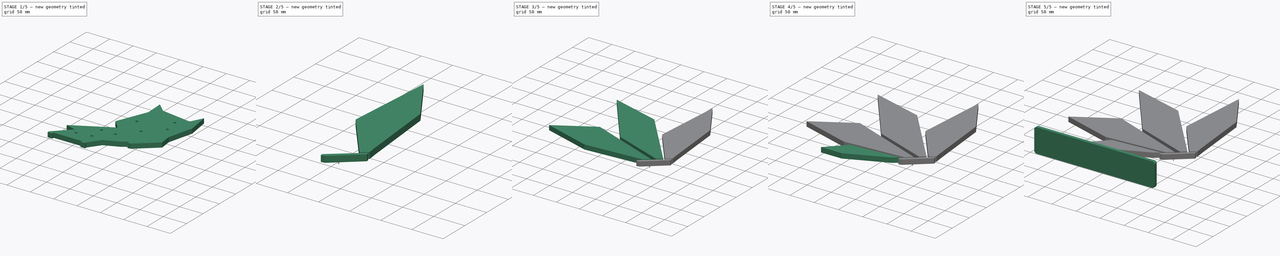
[diagram: build sequence overview — one tinted view per stage of 5, left to right]
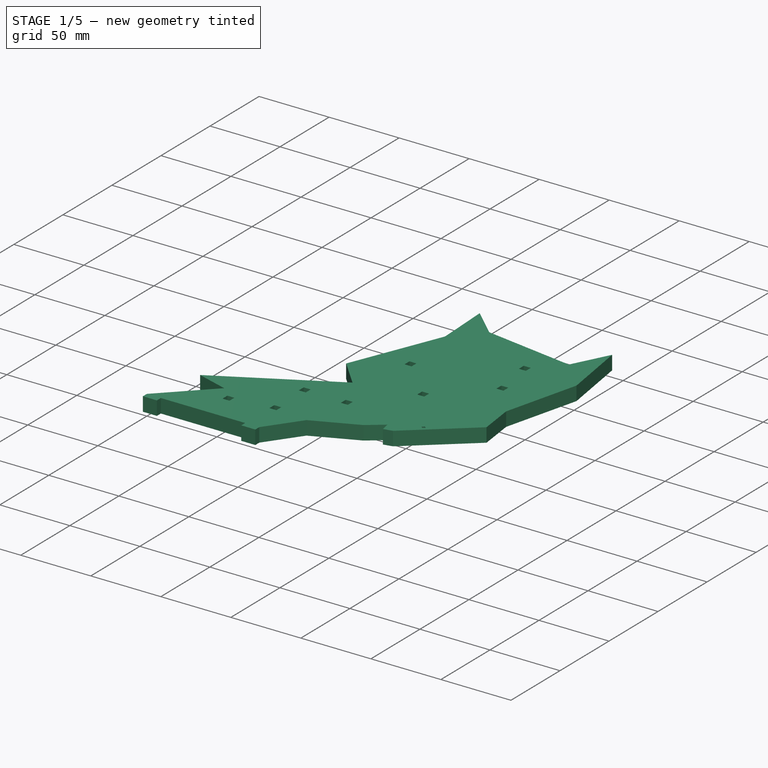
[diagram: stage 1 of 5 — iso view after this stage's code; geometry added in this stage tinted green]
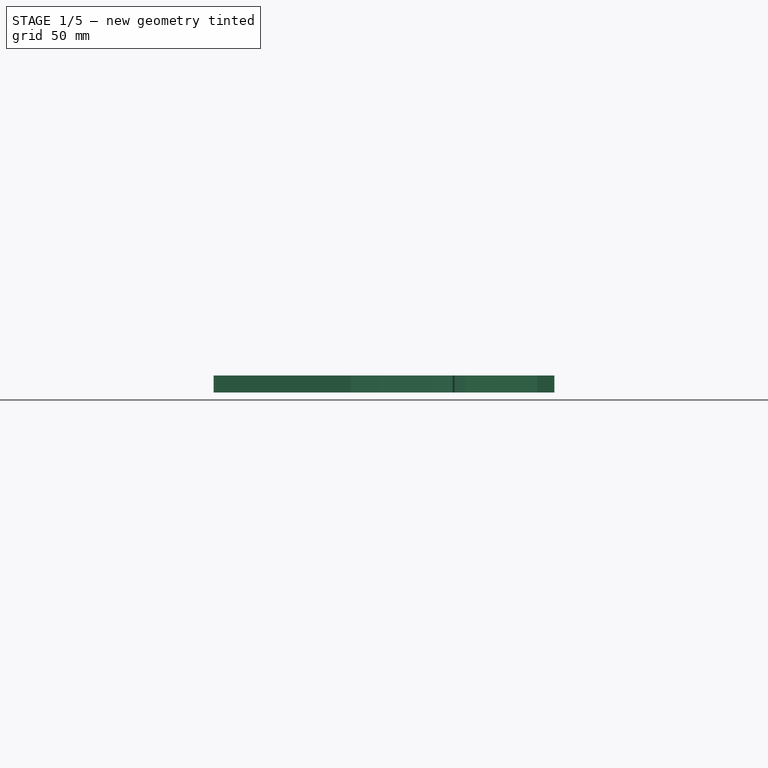
[diagram: stage 1 of 5 — front view after this stage's code; geometry added in this stage tinted green]
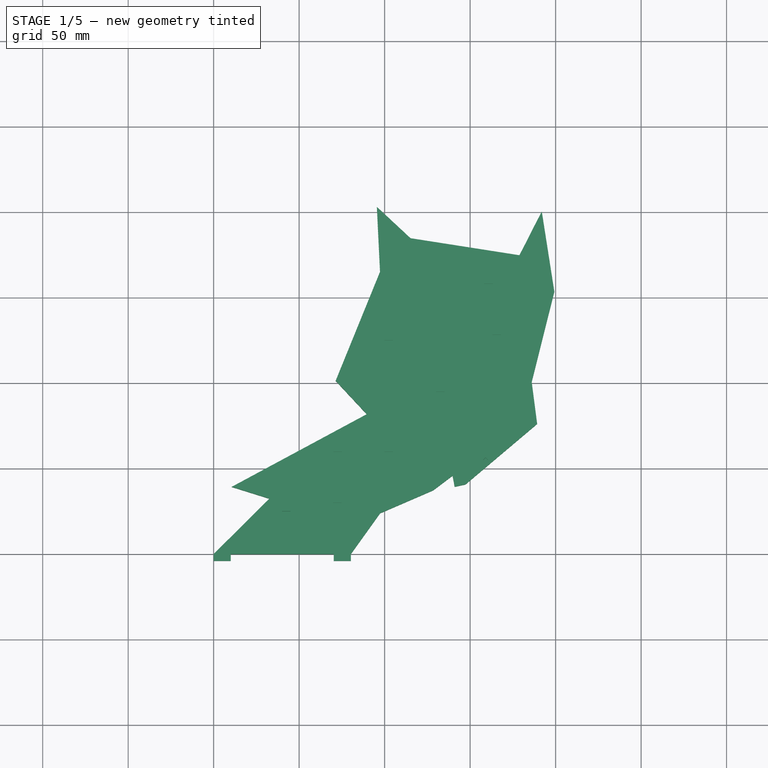
[diagram: stage 1 of 5 — top view after this stage's code; geometry added in this stage tinted green]
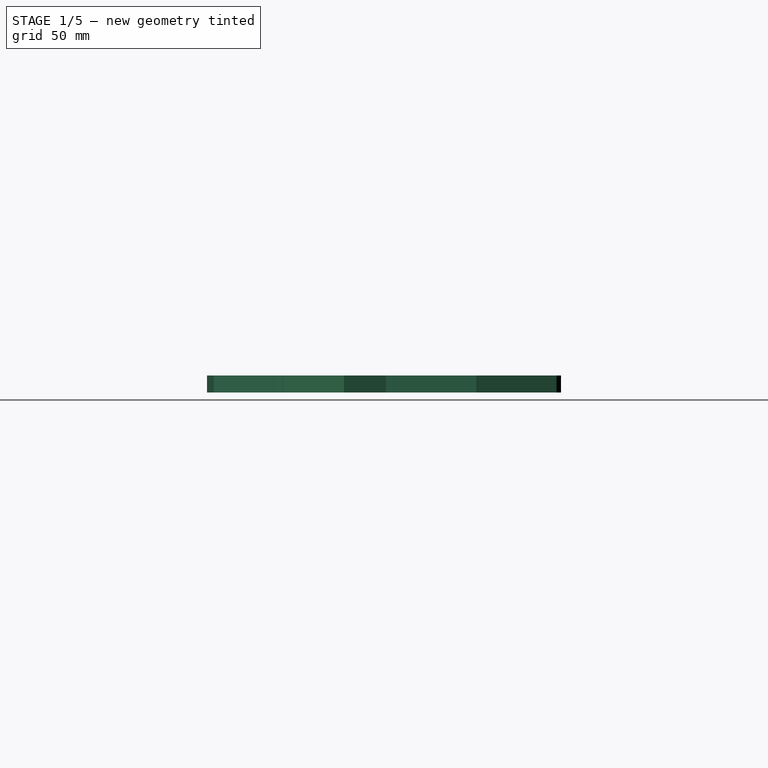
[diagram: stage 1 of 5 — right view after this stage's code; geometry added in this stage tinted green]
FCSTD DOCUMENT  (FreeCAD 0.21R33771 (Git))
Label: Crimson1
License: All rights reserved
LicenseURL: https://en.wikipedia.org/wiki/All_rights_reserved
objects: Sketcher::SketchObject×16, PartDesign::Pad×13, PartDesign::Body×7, PartDesign::ShapeBinder×6, PartDesign::Pocket×2, Image::ImagePlane×1, PartDesign::Fillet×1
note: 61 computed .brp shape members not serialized (recipe doc carries the construction recipe); baked Part::Feature solids carry a one-line shape summary decoded from their .brp

FEATURE [Image::ImagePlane] Crimson_1_emblem
  Placement = pos=(76.8301,148.272,0) rot=(0,0,-1;0.069813rad)
  XSize = 307.477
  YSize = 307.477
FEATURE [Sketcher::SketchObject] Sketch
  FullyConstrained = true
  MapMode = 5
  Support = -> [XY_Plane]
  sketch-geometry (19):
    g0: LineSegment StartX=0 StartY=0 StartZ=0 EndX=80.25 EndY=0 EndZ=0
    g1: LineSegment StartX=80.25 StartY=0 StartZ=0 EndX=97.3178 EndY=23.8401 EndZ=0
    g2: LineSegment StartX=97.3178 StartY=23.8401 StartZ=0 EndX=128.45 EndY=37.3059 EndZ=0
    g3: LineSegment StartX=128.45 StartY=37.3059 StartZ=0 EndX=139.749 EndY=45.8414 EndZ=0
    g4: LineSegment StartX=139.749 StartY=45.8414 StartZ=0 EndX=140.95 EndY=39.3618 EndZ=0
    g5: LineSegment StartX=140.95 StartY=39.3618 StartZ=0 EndX=147.274 EndY=40.728 EndZ=0
    g6: LineSegment StartX=147.274 StartY=40.728 StartZ=0 EndX=189.211 EndY=76.1425 EndZ=0
    g7: LineSegment StartX=186.02 StartY=100.676 StartZ=0 EndX=199.258 EndY=153.533 EndZ=0
    g8: LineSegment StartX=199.258 StartY=153.533 StartZ=0 EndX=191.912 EndY=200.442 EndZ=0
    g9: LineSegment StartX=191.912 StartY=200.442 StartZ=0 EndX=178.851 EndY=174.808 EndZ=0
    g10: LineSegment StartX=178.851 StartY=174.808 StartZ=0 EndX=115.155 EndY=184.771 EndZ=0
    g11: LineSegment StartX=115.155 StartY=184.771 StartZ=0 EndX=95.4513 EndY=203.113 EndZ=0
    g12: LineSegment StartX=95.4513 StartY=203.113 StartZ=0 EndX=97.2957 EndY=165.118 EndZ=0
    g13: LineSegment StartX=97.2957 StartY=165.118 StartZ=0 EndX=71.3445 EndY=101.367 EndZ=0
    g14: LineSegment StartX=71.3445 StartY=101.367 StartZ=0 EndX=89.5553 EndY=81.8249 EndZ=0
    g15: LineSegment StartX=89.5553 StartY=81.8249 StartZ=0 EndX=10.5176 EndY=39.303 EndZ=0
    g16: LineSegment StartX=10.5176 StartY=39.303 StartZ=0 EndX=32.5284 EndY=32.4264 EndZ=0
    g17: LineSegment StartX=32.5284 StartY=32.4264 StartZ=0 EndX=0 EndY=0 EndZ=0
    g18: LineSegment StartX=186.02 StartY=100.676 StartZ=0 EndX=189.211 EndY=76.1425 EndZ=0
  constraints (56):
    c: Coincident(g-1,g0)
    c: PointOnObject(g0,g-1)
    c: Coincident(g0,g1)
    c: Coincident(g2,g3)
    c: Coincident(g2,g1)
    c: Coincident(g3,g4)
    c: Coincident(g4,g5)
    c: Coincident(g5,g6)
    c: Coincident(g7,g8)
    c: Coincident(g8,g9)
    c: Coincident(g9,g10)
    c: Coincident(g10,g11)
    c: Coincident(g11,g12)
    c: Coincident(g12,g13)
    c: Coincident(g13,g14)
    c: Coincident(g15,g16)
    c: Coincident(g16,g17)
    c: Coincident(g17,g0)
    c: DistanceX(g0,g0) = 80.25
    c: Distance(g1) = 29.32
    c: Distance(g2) = 33.92
    c: Distance(g3) = 14.16
    c: Distance(g4) = 6.59
    c: Distance(g5) = 6.47
    c: Distance(g6) = 54.89
    c: Coincident(g18,g7)
    c: Coincident(g18,g6)
    c: Distance(g18) = 24.74
    c: Distance(g7) = 54.49
    c: Distance(g8) = 47.48
    c: Distance(g9) = 28.77
    c: Distance(g10) = 64.47
    c: Distance(g11) = 26.92
    c: Distance(g12) = 38.04
    c: Distance(g13) = 68.83
    c: Angle(g0,g17) = 0.783827
    c: Angle(g16,g17) = 1.08664
    c: Angle(g16,g15) = 0.796394
    c: Distance(g17) = 45.93
    c: Distance(g16) = 23.06
    c: Coincident(g15,g14)
    c: Distance(g15) = 89.75
    c: Angle(g14,g15) = 1.31423
    c: Angle(g14,g13) = 2.00486
    c: Angle(g1,g0) = 2.19213
    c: Angle(g2) = 0.408233
    c: Angle(g3,g2) = 2.90283
    c: Angle(g3,g4) = 1.10706
    c: Angle(g5,g4) = 1.5413
    c: Angle(g6,g5) = 2.65307
    c: Angle(g18,g6) = 2.14274
    c: Angle(g18,g7) = 2.76687
    c: Angle(g8,g7) = 2.74087
    c: Angle(g9,g8) = 0.626573
    c: Angle(g9,g10) = 1.88688
    c: Angle(g10,g11) = 2.54713
FEATURE [PartDesign::Pad] Pad
  Direction = (0,0,1)
  Length = 10
  Length2 = 10
  Profile = -> Sketch
  ReferenceAxis = -> Sketch [N_Axis]
  Type = 0
FEATURE [Sketcher::SketchObject] Sketch001
  ExternalGeometry = -> [Pad]
  FullyConstrained = true
  MapMode = 5
  Placement = pos=(0,0,0) rot=(1,0,0;1.5708rad)
  Support = -> [Pad]
  sketch-geometry (8):
    g0: LineSegment StartX=0 StartY=10 StartZ=0 EndX=10 EndY=10 EndZ=0
    g1: LineSegment StartX=10 StartY=10 StartZ=0 EndX=10 EndY=0 EndZ=0
    g2: LineSegment StartX=10 StartY=0 StartZ=0 EndX=0 EndY=0 EndZ=0
    g3: LineSegment StartX=0 StartY=0 StartZ=0 EndX=0 EndY=10 EndZ=0
    g4: LineSegment StartX=80.25 StartY=10 StartZ=0 EndX=70.25 EndY=10 EndZ=0
    g5: LineSegment StartX=70.25 StartY=10 StartZ=0 EndX=70.25 EndY=0 EndZ=0
    g6: LineSegment StartX=70.25 StartY=0 StartZ=0 EndX=80.25 EndY=0 EndZ=0
    g7: LineSegment StartX=80.25 StartY=0 StartZ=0 EndX=80.25 EndY=10 EndZ=0
  constraints (22):
    c: Coincident(g0,g1)
    c: Coincident(g1,g2)
    c: Coincident(g2,g3)
    c: Coincident(g3,g0)
    c: Horizontal(g0)
    c: Horizontal(g2)
    c: Vertical(g1)
    c: Vertical(g3)
    c: Coincident(g0,g-4)
    c: PointOnObject(g1,g-5)
    c: Coincident(g4,g5)
    c: Coincident(g5,g6)
    c: Coincident(g6,g7)
    c: Coincident(g7,g4)
    c: Horizontal(g4)
    c: Horizontal(g6)
    c: Vertical(g5)
    c: Vertical(g7)
    c: Coincident(g4,g-3)
    c: PointOnObject(g5,g-5)
    c: Equal(g0,g3)
    c: Equal(g4,g7)
FEATURE [PartDesign::Pad] Pad001
  BaseFeature = -> Pad
  Direction = (0,-1,2e-16)
  Length = 4
  Length2 = 10
  Profile = -> Sketch001
  ReferenceAxis = -> Sketch001 [N_Axis]
  Type = 0
FEATURE [PartDesign::Body] Body001  label="Foot"
  Group = -> [ShapeBinder,Sketch002,Pad002,Sketch003,Pocket,Fillet]
  Origin = -> Origin001
  Tip = -> Fillet
FEATURE [Sketcher::SketchObject] Sketch004
  ExternalGeometry = -> [Pad001]
  FullyConstrained = true
  MapMode = 5
  Placement = pos=(0,0,10) rot=(0,0,1;0rad)
  Support = -> [Pad001]
  sketch-geometry (47):
    g0: LineSegment StartX=40 StartY=25 StartZ=0 EndX=45 EndY=25 EndZ=0
    g1: LineSegment StartX=45 StartY=25 StartZ=0 EndX=45 EndY=20 EndZ=0
    g2: LineSegment StartX=45 StartY=20 StartZ=0 EndX=40 EndY=20 EndZ=0
    g3: LineSegment StartX=40 StartY=20 StartZ=0 EndX=40 EndY=25 EndZ=0
    g4: LineSegment StartX=70 StartY=30 StartZ=0 EndX=75 EndY=30 EndZ=0
    g5: LineSegment StartX=75 StartY=30 StartZ=0 EndX=75 EndY=25 EndZ=0
    g6: LineSegment StartX=75 StartY=25 StartZ=0 EndX=70 EndY=25 EndZ=0
    g7: LineSegment StartX=70 StartY=25 StartZ=0 EndX=70 EndY=30 EndZ=0
    g8: LineSegment StartX=70 StartY=60 StartZ=0 EndX=75 EndY=60 EndZ=0
    g9: LineSegment StartX=75 StartY=60 StartZ=0 EndX=75 EndY=55 EndZ=0
    g10: LineSegment StartX=75 StartY=55 StartZ=0 EndX=70 EndY=55 EndZ=0
    g11: LineSegment StartX=70 StartY=55 StartZ=0 EndX=70 EndY=60 EndZ=0
    g12: LineSegment StartX=105 StartY=60 StartZ=0 EndX=100 EndY=60 EndZ=0
    g13: LineSegment StartX=100 StartY=60 StartZ=0 EndX=100 EndY=55 EndZ=0
    g14: LineSegment StartX=100 StartY=55 StartZ=0 EndX=105 EndY=55 EndZ=0
    g15: LineSegment StartX=105 StartY=55 StartZ=0 EndX=105 EndY=60 EndZ=0
    g16: LineSegment StartX=100 StartY=125 StartZ=0 EndX=105 EndY=125 EndZ=0
    g17: LineSegment StartX=105 StartY=125 StartZ=0 EndX=105 EndY=120 EndZ=0
    g18: LineSegment StartX=105 StartY=120 StartZ=0 EndX=100 EndY=120 EndZ=0
    g19: LineSegment StartX=100 StartY=120 StartZ=0 EndX=100 EndY=125 EndZ=0
    g20: LineSegment StartX=130 StartY=95 StartZ=0 EndX=135 EndY=95 EndZ=0
    g21: LineSegment StartX=135 StartY=95 StartZ=0 EndX=135 EndY=90 EndZ=0
    g22: LineSegment StartX=135 StartY=90 StartZ=0 EndX=130 EndY=90 EndZ=0
    g23: LineSegment StartX=130 StartY=90 StartZ=0 EndX=130 EndY=95 EndZ=0
    g24: LineSegment StartX=158.284 StartY=158.284 StartZ=0 EndX=163.284 EndY=158.284 EndZ=0
    g25: LineSegment StartX=163.284 StartY=158.284 StartZ=0 EndX=163.284 EndY=153.284 EndZ=0
    g26: LineSegment StartX=163.284 StartY=153.284 StartZ=0 EndX=158.284 EndY=153.284 EndZ=0
    g27: LineSegment StartX=158.284 StartY=153.284 StartZ=0 EndX=158.284 EndY=158.284 EndZ=0
    g28: LineSegment StartX=163.284 StartY=128.284 StartZ=0 EndX=168.284 EndY=128.284 EndZ=0
    g29: LineSegment StartX=168.284 StartY=128.284 StartZ=0 EndX=168.284 EndY=123.284 EndZ=0
    g30: LineSegment StartX=168.284 StartY=123.284 StartZ=0 EndX=163.284 EndY=123.284 EndZ=0
    g31: LineSegment StartX=163.284 StartY=123.284 StartZ=0 EndX=163.284 EndY=128.284 EndZ=0
    g32: LineSegment StartX=45 StartY=25 StartZ=0 EndX=70 EndY=25 EndZ=0
    g33: LineSegment StartX=40 StartY=20 StartZ=0 EndX=40 EndY=0 EndZ=0
    g34: LineSegment StartX=75 StartY=55 StartZ=0 EndX=105 EndY=55 EndZ=0
    g35: LineSegment StartX=70 StartY=55 StartZ=0 EndX=70 EndY=30 EndZ=0
    g36: LineSegment StartX=105 StartY=60 StartZ=0 EndX=105 EndY=120 EndZ=0
    g37: GeomPoint X=105 Y=90 Z=0
    g38: LineSegment StartX=105 StartY=90 StartZ=0 EndX=130 EndY=90 EndZ=0
    g39: LineSegment StartX=163.284 StartY=123.284 StartZ=0 EndX=135 EndY=95 EndZ=0
    g40: LineSegment StartX=163.284 StartY=153.284 StartZ=0 EndX=163.284 EndY=128.284 EndZ=0
    g41: GeomPoint X=159 Y=55 Z=0
    g42: LineSegment StartX=157.586 StartY=55 StartZ=0 EndX=159 EndY=56.4142 EndZ=0
    g43: LineSegment StartX=159 StartY=56.4142 StartZ=0 EndX=160.414 EndY=55 EndZ=0
    g44: LineSegment StartX=160.414 StartY=55 StartZ=0 EndX=159 EndY=53.5858 EndZ=0
    g45: LineSegment StartX=159 StartY=53.5858 StartZ=0 EndX=157.586 EndY=55 EndZ=0
    g46: LineSegment StartX=105 StartY=55 StartZ=0 EndX=159 EndY=55 EndZ=0
  constraints (129):
    c: Coincident(g0,g1)
    c: Coincident(g1,g2)
    c: Coincident(g2,g3)
    c: Coincident(g3,g0)
    c: Horizontal(g0)
    c: Horizontal(g2)
    c: Vertical(g1)
    c: Vertical(g3)
    c: Coincident(g4,g5)
    c: Coincident(g5,g6)
    c: Coincident(g6,g7)
    c: Coincident(g7,g4)
    c: Horizontal(g4)
    c: Horizontal(g6)
    c: Vertical(g5)
    c: Vertical(g7)
    c: Coincident(g8,g9)
    c: Coincident(g9,g10)
    c: Coincident(g10,g11)
    c: Coincident(g11,g8)
    c: Horizontal(g8)
    c: Horizontal(g10)
    c: Vertical(g9)
    c: Vertical(g11)
    c: Coincident(g12,g13)
    c: Coincident(g13,g14)
    c: Coincident(g14,g15)
    c: Coincident(g15,g12)
    c: Horizontal(g12)
    c: Horizontal(g14)
    c: Vertical(g13)
    c: Vertical(g15)
    c: Coincident(g16,g17)
    c: Coincident(g17,g18)
    c: Coincident(g18,g19)
    c: Coincident(g19,g16)
    c: Horizontal(g16)
    c: Horizontal(g18)
    c: Vertical(g17)
    c: Vertical(g19)
    c: Coincident(g20,g21)
    c: Coincident(g21,g22)
    c: Coincident(g22,g23)
    c: Coincident(g23,g20)
    c: Horizontal(g20)
    c: Horizontal(g22)
    c: Vertical(g21)
    c: Vertical(g23)
    c: Coincident(g24,g25)
    c: Coincident(g25,g26)
    c: Coincident(g26,g27)
    c: Coincident(g27,g24)
    c: Horizontal(g24)
    c: Horizontal(g26)
    c: Vertical(g25)
    c: Vertical(g27)
    c: Coincident(g28,g29)
    c: Coincident(g29,g30)
    c: Coincident(g30,g31)
    c: Coincident(g31,g28)
    c: Horizontal(g28)
    c: Horizontal(g30)
    c: Vertical(g29)
    c: Vertical(g31)
    c: Equal(g2,g1)
    c: Equal(g6,g5)
    c: Equal(g10,g9)
    c: Equal(g14,g13)
    c: Equal(g18,g17)
    c: Equal(g22,g21)
    c: Equal(g30,g29)
    c: Equal(g26,g25)
    c: Equal(g3,g7)
    c: Equal(g11,g7)
    c: Equal(g11,g15)
    c: Equal(g15,g23)
    c: Equal(g23,g19)
    c: Equal(g19,g31)
    c: Equal(g31,g27)
    c: DistanceX(g2,g2) = 5
    c: Coincident(g32,g0)
    c: Coincident(g32,g6)
    c: Horizontal(g32)
    c: DistanceX(g32,g32) = 25
    c: Coincident(g33,g2)
    c: PointOnObject(g33,g-3)
    c: Vertical(g33)
    c: DistanceX(g-1,g33) = 40
    c: DistanceY(g33,g2) = 20
    c: Coincident(g34,g9)
    c: Coincident(g34,g14)
    c: Horizontal(g34)
    c: Coincident(g35,g10)
    c: Coincident(g35,g4)
    c: Vertical(g35)
    c: DistanceY(g35,g35) = 25
    c: DistanceX(g34,g34) = 30
    c: Coincident(g36,g12)
    c: Coincident(g36,g17)
    c: Vertical(g36)
    c: Symmetric(g12,g17,g37)
    c: Coincident(g38,g37)
    c: Coincident(g38,g22)
    c: Horizontal(g38)
    c: DistanceY(g36,g36) = 60
    c: DistanceX(g38,g38) = 25
    c: Coincident(g39,g30)
    c: Coincident(g39,g20)
    c: Angle(g39,g20) = 2.35619
    c: Distance(g39) = 40
    c: Coincident(g40,g25)
    c: Coincident(g40,g28)
    c: Vertical(g40)
    c: DistanceY(g40,g40) = 25
    c: Coincident(g42,g43)
    c: Coincident(g43,g44)
    c: Coincident(g44,g45)
    c: Coincident(g45,g42)
    c: Vertical(g44,g42)
    c: Horizontal(g42,g43)
    c: Parallel(g45,g43)
    c: Parallel(g44,g42)
    c: Angle(g44,g45) = 1.5708
    c: Symmetric(g42,g44,g41)
    c: Coincident(g46,g14)
    c: Coincident(g46,g41)
    c: Horizontal(g46)
    c: Distance(g45) = 2
    c: DistanceX(g46,g46) = 54
FEATURE [PartDesign::Pocket] Pocket001
  BaseFeature = -> Pad001
  Direction = (0,0,-1)
  Length = 5
  Length2 = 5
  Profile = -> Sketch004
  ReferenceAxis = -> Sketch004 [N_Axis]
  Type = 0
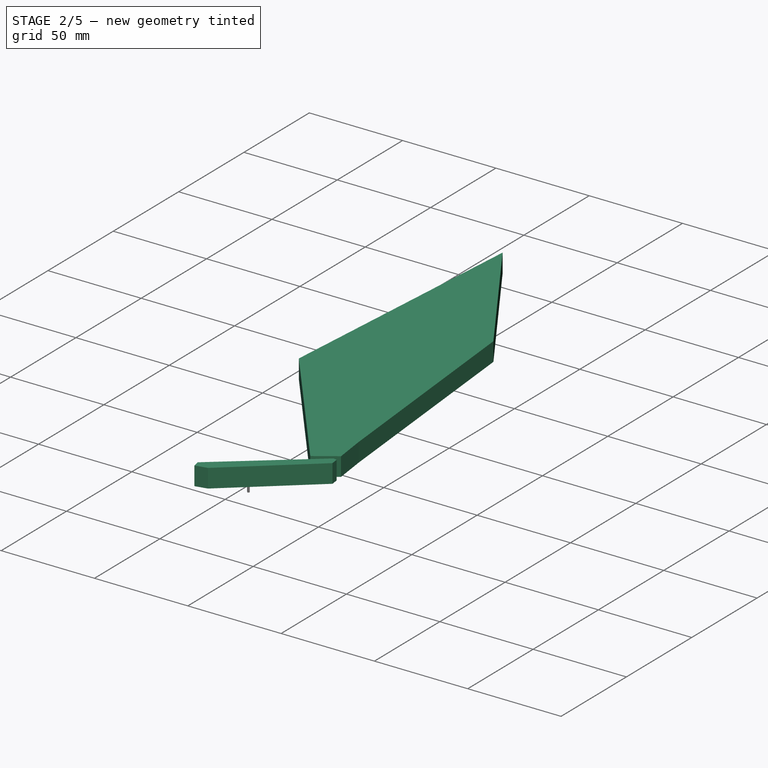
[diagram: stage 2 of 5 — iso view after this stage's code; geometry added in this stage tinted green]
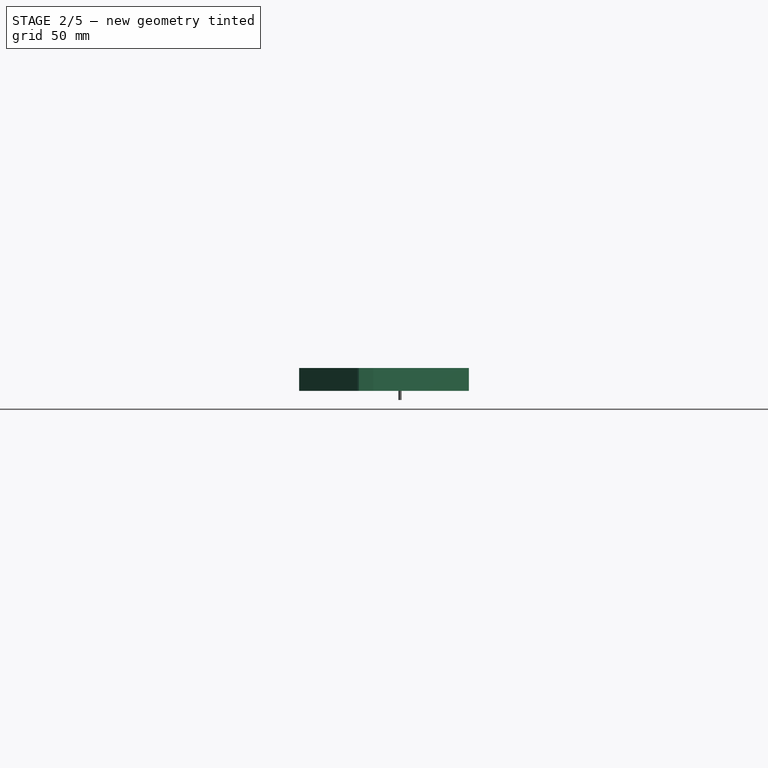
[diagram: stage 2 of 5 — front view after this stage's code; geometry added in this stage tinted green]
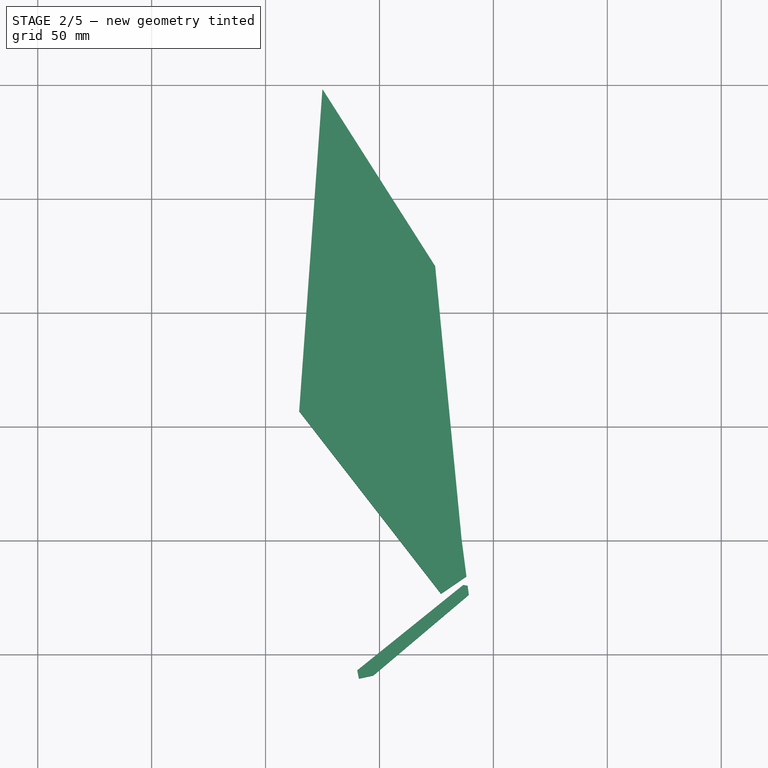
[diagram: stage 2 of 5 — top view after this stage's code; geometry added in this stage tinted green]
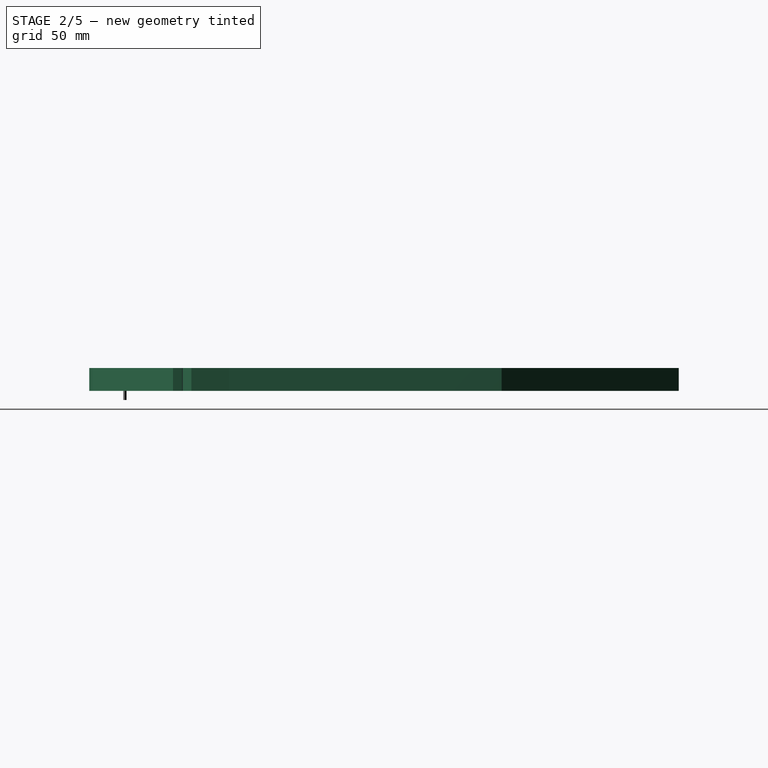
[diagram: stage 2 of 5 — right view after this stage's code; geometry added in this stage tinted green]
FEATURE [PartDesign::Body] Body004  label="WingThree"
  Group = -> [ShapeBinder003,Sketch009,Sketch010,Pad007,Sketch011,Pad008]
  Origin = -> Origin004
  Tip = -> Pad008
FEATURE [PartDesign::ShapeBinder] ShapeBinder004
  Support = -> [Pocket001]
  TraceSupport = false
FEATURE [Sketcher::SketchObject] Sketch012
  ExternalGeometry = -> [ShapeBinder004]
  FullyConstrained = true
  MapMode = 5
  Placement = pos=(0,0,10) rot=(0,0,1;0rad)
  Support = -> [ShapeBinder004]
  sketch-geometry (6):
    g0: LineSegment StartX=186.02 StartY=100.676 StartZ=0 EndX=188.164 EndY=84.1947 EndZ=0
    g1: LineSegment StartX=188.164 StartY=84.1947 StartZ=0 EndX=177.002 EndY=76.5834 EndZ=0
    g2: LineSegment StartX=177.002 StartY=76.5834 StartZ=0 EndX=114.751 EndY=156.736 EndZ=0
    g3: LineSegment StartX=114.751 StartY=156.736 StartZ=0 EndX=124.949 EndY=298.108 EndZ=0
    g4: LineSegment StartX=124.949 StartY=298.108 StartZ=0 EndX=174.445 EndY=220.367 EndZ=0
    g5: LineSegment StartX=174.445 StartY=220.367 StartZ=0 EndX=186.02 EndY=100.676 EndZ=0
  constraints (17):
    c: Coincident(g-3,g0)
    c: PointOnObject(g0,g-3)
    c: Coincident(g0,g1)
    c: Coincident(g1,g2)
    c: Coincident(g2,g3)
    c: Coincident(g3,g4)
    c: Coincident(g4,g5)
    c: Coincident(g5,g0)
    c: PointOnObject(g-4,g5)
    c: Distance(g1) = 13.51
    c: Distance(g5) = 120.25
    c: Distance(g0) = 16.62
    c: Distance(g4) = 92.16
    c: Distance(g3) = 141.74
    c: Angle(g4,g5) = 2.67105
    c: Angle(g3,g4) = 0.638965
    c: Angle(g0,g1) = 2.03994
FEATURE [PartDesign::Pad] Pad009
  Direction = (0,0,1)
  Length = 10
  Length2 = 10
  Profile = -> Sketch012
  ReferenceAxis = -> Sketch012 [N_Axis]
  Type = 0
FEATURE [PartDesign::Body] Body005  label="WingFour"
  Group = -> [ShapeBinder004,Sketch012,Pad009,Sketch013,Pad010]
  Origin = -> Origin005
  Tip = -> Pad010
FEATURE [PartDesign::ShapeBinder] ShapeBinder005
  Support = -> [Pocket001]
  TraceSupport = false
FEATURE [Sketcher::SketchObject] Sketch014
  ExternalGeometry = -> [ShapeBinder005]
  FullyConstrained = true
  MapMode = 5
  Placement = pos=(0,0,10) rot=(0,0,1;0rad)
  Support = -> [ShapeBinder005]
  sketch-geometry (6):
    g0: LineSegment StartX=189.211 StartY=76.1425 StartZ=0 EndX=188.699 EndY=80.0793 EndZ=0
    g1: LineSegment StartX=188.699 StartY=80.0793 StartZ=0 EndX=186.741 EndY=80.3901 EndZ=0
    g2: LineSegment StartX=186.741 StartY=80.3901 StartZ=0 EndX=140.279 EndY=42.9802 EndZ=0
    g3: LineSegment StartX=140.279 StartY=42.9802 StartZ=0 EndX=140.95 EndY=39.3618 EndZ=0
    g4: LineSegment StartX=140.95 StartY=39.3618 StartZ=0 EndX=147.274 EndY=40.728 EndZ=0
    g5: LineSegment StartX=147.274 StartY=40.728 StartZ=0 EndX=189.211 EndY=76.1425 EndZ=0
  constraints (15):
    c: Coincident(g-6,g0)
    c: PointOnObject(g0,g-6)
    c: Coincident(g0,g1)
    c: Coincident(g1,g2)
    c: PointOnObject(g2,g-3)
    c: Coincident(g2,g3)
    c: Coincident(g3,g-4)
    c: Coincident(g3,g4)
    c: Coincident(g4,g-5)
    c: Coincident(g4,g5)
    c: Coincident(g5,g0)
    c: Distance(g0) = 3.97
    c: Distance(g3) = 3.68
    c: Angle(g3,g2) = 2.06542
    c: Angle(g1,g0) = 1.85755
FEATURE [PartDesign::Pad] Pad011
  Direction = (0,0,1)
  Length = 10
  Length2 = 10
  Profile = -> Sketch014
  ReferenceAxis = -> Sketch014 [N_Axis]
  Type = 0
FEATURE [Sketcher::SketchObject] Sketch015
  ExternalGeometry = -> [ShapeBinder005]
  FullyConstrained = true
  MapMode = 5
  Placement = pos=(0,0,10) rot=(1,0,0;3.14159rad)
  Support = -> [Pad011]
  sketch-geometry (7):
    g0: GeomPoint X=159 Y=-55 Z=0
    g1: LineSegment StartX=159 StartY=-54.2929 StartZ=0 EndX=159.707 EndY=-55 EndZ=0
    g2: LineSegment StartX=159.707 StartY=-55 StartZ=0 EndX=159 EndY=-55.7071 EndZ=0
    g3: LineSegment StartX=159 StartY=-55.7071 StartZ=0 EndX=158.293 EndY=-55 EndZ=0
    g4: LineSegment StartX=158.293 StartY=-55 StartZ=0 EndX=159 EndY=-54.2929 EndZ=0
    g5: GeomPoint X=159 Y=-55 Z=0
    g6: LineSegment StartX=159 StartY=-54.2929 StartZ=0 EndX=159.354 EndY=-53.9393 EndZ=0
  constraints (16):
    c: Symmetric(g-3,g-4,g0)
    c: Coincident(g1,g2)
    c: Coincident(g2,g3)
    c: Coincident(g3,g4)
    c: Coincident(g4,g1)
    c: Symmetric(g2,g1,g5)
    c: Coincident(g5,g0)
    c: Horizontal(g1,g3)
    c: Vertical(g1,g2)
    c: Parallel(g1,g3)
    c: Parallel(g2,g4)
    c: Angle(g4,g1) = 1.5708
    c: Coincident(g6,g1)
    c: PointOnObject(g6,g-3)
    c: Parallel(g6,g4)
    c: Distance(g6) = 0.5
FEATURE [PartDesign::Pad] Pad012
  BaseFeature = -> Pad011
  Direction = (0,0,-1)
  Length = 4
  Length2 = 10
  Profile = -> Sketch015
  ReferenceAxis = -> Sketch015 [N_Axis]
  Type = 0
FEATURE [PartDesign::Body] Body006  label="Body"
  Group = -> [ShapeBinder005,Sketch014,Pad011,Sketch015,Pad012]
  Origin = -> Origin006
  Tip = -> Pad012
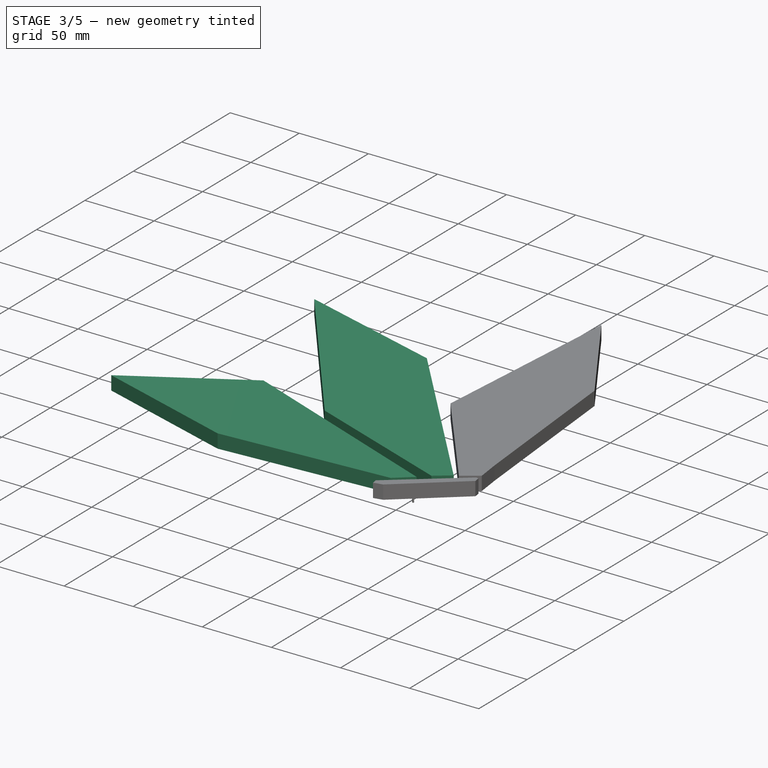
[diagram: stage 3 of 5 — iso view after this stage's code; geometry added in this stage tinted green]
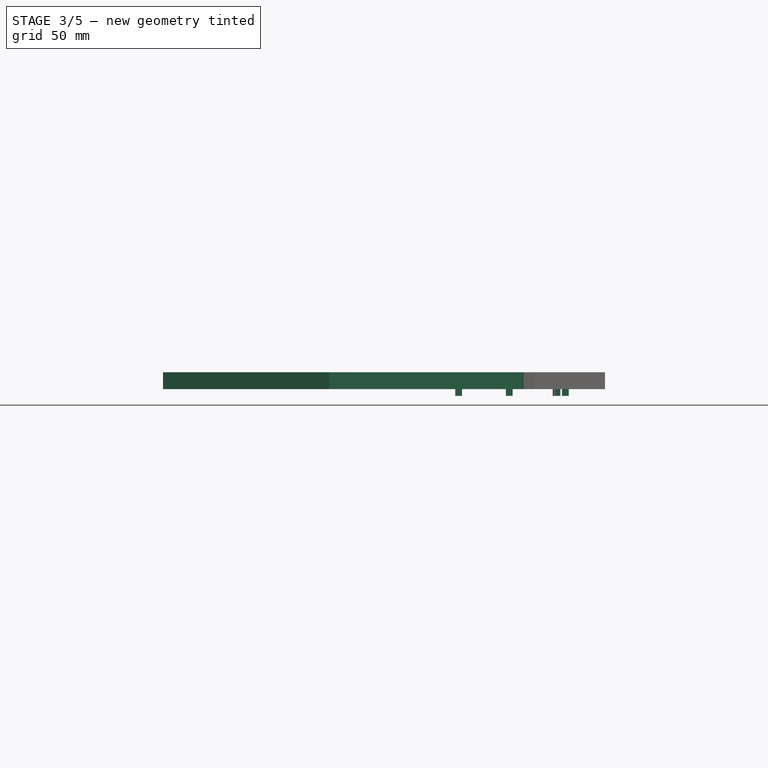
[diagram: stage 3 of 5 — front view after this stage's code; geometry added in this stage tinted green]
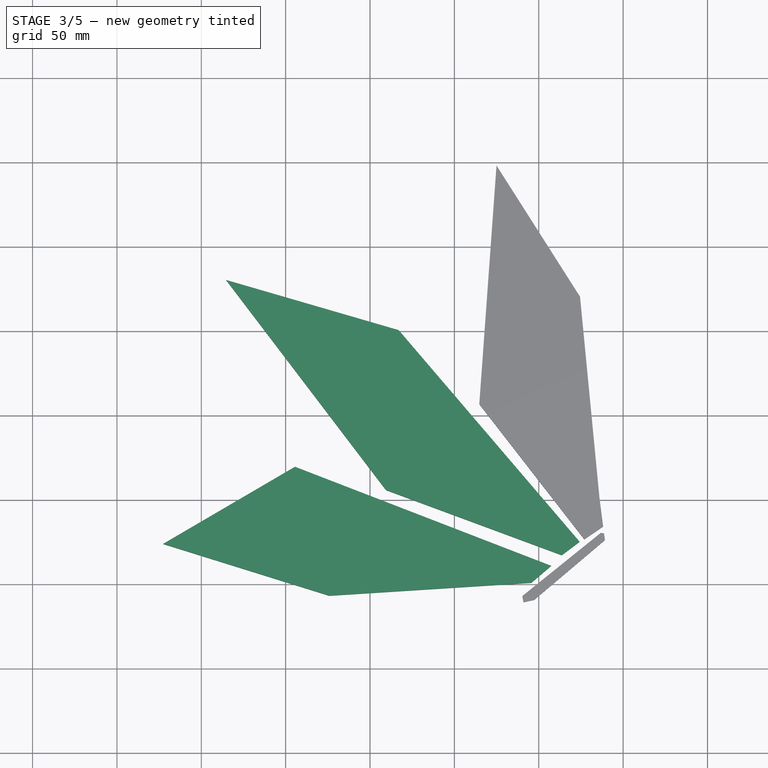
[diagram: stage 3 of 5 — top view after this stage's code; geometry added in this stage tinted green]
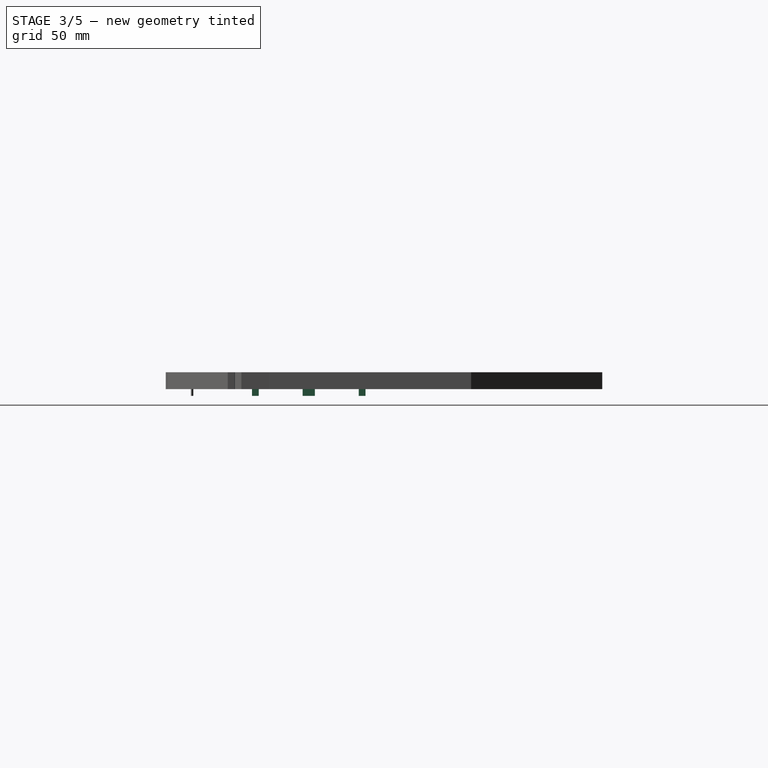
[diagram: stage 3 of 5 — right view after this stage's code; geometry added in this stage tinted green]
FEATURE [PartDesign::Body] Body002  label="WingOne"
  Group = -> [ShapeBinder001,Sketch005,Pad003,Sketch006,Pad004]
  Origin = -> Origin002
  Tip = -> Pad004
FEATURE [PartDesign::ShapeBinder] ShapeBinder002
  Support = -> [Pocket001]
  TraceSupport = false
FEATURE [Sketcher::SketchObject] Sketch007
  FullyConstrained = true
  MapMode = 5
  Placement = pos=(0,0,10) rot=(0,0,1;0rad)
  Support = -> [ShapeBinder002]
  sketch-geometry (5):
    g0: LineSegment StartX=157.385 StartY=60.8629 StartZ=0 EndX=145.555 EndY=50.8164 EndZ=0
    g1: LineSegment StartX=145.555 StartY=50.8164 StartZ=0 EndX=25.86 EndY=43.16 EndZ=0
    g2: LineSegment StartX=25.86 StartY=43.16 StartZ=0 EndX=-72.6564 EndY=73.8633 EndZ=0
    g3: LineSegment StartX=-72.6564 StartY=73.8633 StartZ=0 EndX=5.52207 EndY=119.584 EndZ=0
    g4: LineSegment StartX=5.52207 StartY=119.584 StartZ=0 EndX=157.385 EndY=60.8629 EndZ=0
  constraints (15):
    c: Coincident(g0,g1)
    c: Coincident(g1,g2)
    c: Coincident(g2,g3)
    c: Coincident(g3,g4)
    c: Coincident(g4,g0)
    c: Angle(g0,g1) = 2.50141
    c: Angle(g4,g0) = 1.07303
    c: Distance(g0) = 15.52
    c: Distance(g1) = 119.94
    c: DistanceX(g-1,g1) = 25.86
    c: DistanceY(g-1,g1) = 43.16
    c: Angle(g1,g2) = 2.7756
    c: Angle(g2,g-2) = 1.87291
    c: Angle(g2,g3) = 0.8313
    c: Distance(g2) = 103.19
FEATURE [PartDesign::Pad] Pad005
  Direction = (0,0,1)
  Length = 10
  Length2 = 10
  Profile = -> Sketch007
  ReferenceAxis = -> Sketch007 [N_Axis]
  Type = 0
FEATURE [PartDesign::Body] Body003  label="WingTwo"
  Group = -> [ShapeBinder002,Sketch007,Pad005,Sketch008,Pad006]
  Origin = -> Origin003
  Tip = -> Pad006
FEATURE [PartDesign::ShapeBinder] ShapeBinder003
  Support = -> [Pocket001]
  TraceSupport = false
FEATURE [Sketcher::SketchObject] Sketch009
  FullyConstrained = true
  MapMode = 5
  Placement = pos=(0,0,10) rot=(0,0,1;0rad)
  Support = -> [ShapeBinder003]
FEATURE [Sketcher::SketchObject] Sketch010
  ExternalGeometry = -> [ShapeBinder003]
  FullyConstrained = true
  MapMode = 5
  Placement = pos=(0,0,10) rot=(0,0,1;0rad)
  Support = -> [ShapeBinder003]
  sketch-geometry (7):
    g0: LineSegment StartX=174.229 StartY=75.1472 StartZ=0 EndX=163.626 EndY=67.1827 EndZ=0
    g1: LineSegment StartX=163.626 StartY=67.1827 StartZ=0 EndX=59.4729 EndY=105.765 EndZ=0
    g2: LineSegment StartX=59.4729 StartY=105.765 StartZ=0 EndX=-35.315 EndY=230.311 EndZ=0
    g3: LineSegment StartX=-35.315 StartY=230.311 StartZ=0 EndX=66.9704 EndY=200.582 EndZ=0
    g4: LineSegment StartX=66.9704 StartY=200.582 StartZ=0 EndX=174.229 EndY=75.1472 EndZ=0
    g5: LineSegment StartX=105 StartY=125 StartZ=0 EndX=131.6 EndY=125 EndZ=0
    g6: LineSegment StartX=105 StartY=125 StartZ=0 EndX=66.9704 EndY=200.582 EndZ=0
  constraints (20):
    c: Coincident(g0,g1)
    c: PointOnObject(g-3,g1)
    c: Coincident(g1,g2)
    c: Coincident(g2,g3)
    c: Coincident(g3,g4)
    c: Coincident(g4,g0)
    c: PointOnObject(g-4,g4)
    c: Coincident(g5,g-5)
    c: PointOnObject(g5,g4)
    c: Horizontal(g5)
    c: DistanceX(g5,g5) = 26.6
    c: Distance(g4) = 165.04
    c: Coincident(g6,g5)
    c: Coincident(g6,g3)
    c: Distance(g6) = 84.61
    c: Angle(g4,g0) = 1.50762
    c: Angle(g0,g1) = 2.14257
    c: Angle(g1,g2) = 2.57611
    c: Distance(g1) = 111.07
    c: Angle(g3,g4) = 2.5611
FEATURE [PartDesign::Pad] Pad007
  Direction = (0,0,1)
  Length = 10
  Length2 = 10
  Profile = -> Sketch010
  ReferenceAxis = -> Sketch010 [N_Axis]
  Type = 0
FEATURE [Sketcher::SketchObject] Sketch011
  ExternalGeometry = -> [ShapeBinder003]
  FullyConstrained = true
  MapMode = 5
  Placement = pos=(0,0,10) rot=(1,0,0;3.14159rad)
  Support = -> [Pad007]
  sketch-geometry (13):
    g0: GeomPoint X=102.5 Y=-122.5 Z=0
    g1: GeomPoint X=132.5 Y=-92.5 Z=0
    g2: LineSegment StartX=134.5 StartY=-90.5 StartZ=0 EndX=134.5 EndY=-94.5 EndZ=0
    g3: LineSegment StartX=134.5 StartY=-94.5 StartZ=0 EndX=130.5 EndY=-94.5 EndZ=0
    g4: LineSegment StartX=130.5 StartY=-94.5 StartZ=0 EndX=130.5 EndY=-90.5 EndZ=0
    g5: LineSegment StartX=130.5 StartY=-90.5 StartZ=0 EndX=134.5 EndY=-90.5 EndZ=0
    g6: GeomPoint X=132.5 Y=-92.5 Z=0
    g7: LineSegment StartX=104.5 StartY=-120.5 StartZ=0 EndX=104.5 EndY=-124.5 EndZ=0
    g8: LineSegment StartX=104.5 StartY=-124.5 StartZ=0 EndX=100.5 EndY=-124.5 EndZ=0
    g9: LineSegment StartX=100.5 StartY=-124.5 StartZ=0 EndX=100.5 EndY=-120.5 EndZ=0
    g10: LineSegment StartX=100.5 StartY=-120.5 StartZ=0 EndX=104.5 EndY=-120.5 EndZ=0
    g11: GeomPoint X=102.5 Y=-122.5 Z=0
    g12: LineSegment StartX=134.5 StartY=-90.5 StartZ=0 EndX=134.5 EndY=-90 EndZ=0
  constraints (29):
    c: Symmetric(g-3,g-4,g1)
    c: Symmetric(g-5,g-6,g0)
    c: Coincident(g2,g3)
    c: Coincident(g3,g4)
    c: Coincident(g4,g5)
    c: Coincident(g5,g2)
    c: Horizontal(g3)
    c: Horizontal(g5)
    c: Vertical(g2)
    c: Vertical(g4)
    c: Symmetric(g3,g2,g6)
    c: Coincident(g6,g1)
    c: Coincident(g7,g8)
    c: Coincident(g8,g9)
    c: Coincident(g9,g10)
    c: Coincident(g10,g7)
    c: Horizontal(g8)
    c: Horizontal(g10)
    c: Vertical(g7)
    c: Vertical(g9)
    c: Symmetric(g8,g7,g11)
    c: Coincident(g11,g0)
    c: Equal(g5,g4)
    c: Equal(g10,g9)
    c: Equal(g4,g7)
    c: Coincident(g12,g2)
    c: PointOnObject(g12,g-3)
    c: Vertical(g12)
    c: DistanceY(g12,g12) = 0.5
FEATURE [PartDesign::Pad] Pad008
  BaseFeature = -> Pad007
  Direction = (0,0,-1)
  Length = 4
  Length2 = 10
  Profile = -> Sketch011
  ReferenceAxis = -> Sketch011 [N_Axis]
  Type = 0
FEATURE [Sketcher::SketchObject] Sketch013
  ExternalGeometry = -> [ShapeBinder004]
  FullyConstrained = true
  MapMode = 5
  Placement = pos=(0,0,10) rot=(1,0,0;3.14159rad)
  Support = -> [Pad009]
  sketch-geometry (13):
    g0: GeomPoint X=160.784 Y=-155.784 Z=0
    g1: GeomPoint X=165.784 Y=-125.784 Z=0
    g2: LineSegment StartX=167.784 StartY=-123.784 StartZ=0 EndX=167.784 EndY=-127.784 EndZ=0
    g3: LineSegment StartX=167.784 StartY=-127.784 StartZ=0 EndX=163.784 EndY=-127.784 EndZ=0
    g4: LineSegment StartX=163.784 StartY=-127.784 StartZ=0 EndX=163.784 EndY=-123.784 EndZ=0
    g5: LineSegment StartX=163.784 StartY=-123.784 StartZ=0 EndX=167.784 EndY=-123.784 EndZ=0
    g6: GeomPoint X=165.784 Y=-125.784 Z=0
    g7: LineSegment StartX=162.784 StartY=-153.784 StartZ=0 EndX=162.784 EndY=-157.784 EndZ=0
    g8: LineSegment StartX=162.784 StartY=-157.784 StartZ=0 EndX=158.784 EndY=-157.784 EndZ=0
    g9: LineSegment StartX=158.784 StartY=-157.784 StartZ=0 EndX=158.784 EndY=-153.784 EndZ=0
    g10: LineSegment StartX=158.784 StartY=-153.784 StartZ=0 EndX=162.784 EndY=-153.784 EndZ=0
    g11: GeomPoint X=160.784 Y=-155.784 Z=0
    g12: LineSegment StartX=167.784 StartY=-123.784 StartZ=0 EndX=167.784 EndY=-123.284 EndZ=0
  constraints (29):
    c: Symmetric(g-5,g-6,g1)
    c: Symmetric(g-3,g-4,g0)
    c: Coincident(g2,g3)
    c: Coincident(g3,g4)
    c: Coincident(g4,g5)
    c: Coincident(g5,g2)
    c: Horizontal(g3)
    c: Horizontal(g5)
    c: Vertical(g2)
    c: Vertical(g4)
    c: Symmetric(g3,g2,g6)
    c: Coincident(g6,g1)
    c: Coincident(g7,g8)
    c: Coincident(g8,g9)
    c: Coincident(g9,g10)
    c: Coincident(g10,g7)
    c: Horizontal(g8)
    c: Horizontal(g10)
    c: Vertical(g7)
    c: Vertical(g9)
    c: Symmetric(g8,g7,g11)
    c: Coincident(g11,g0)
    c: Equal(g5,g4)
    c: Equal(g10,g9)
    c: Equal(g9,g4)
    c: Coincident(g12,g2)
    c: PointOnObject(g12,g-5)
    c: Vertical(g12)
    c: DistanceY(g12,g12) = 0.5
FEATURE [PartDesign::Pad] Pad010
  BaseFeature = -> Pad009
  Direction = (0,0,-1)
  Length = 4
  Length2 = 10
  Profile = -> Sketch013
  ReferenceAxis = -> Sketch013 [N_Axis]
  Type = 0
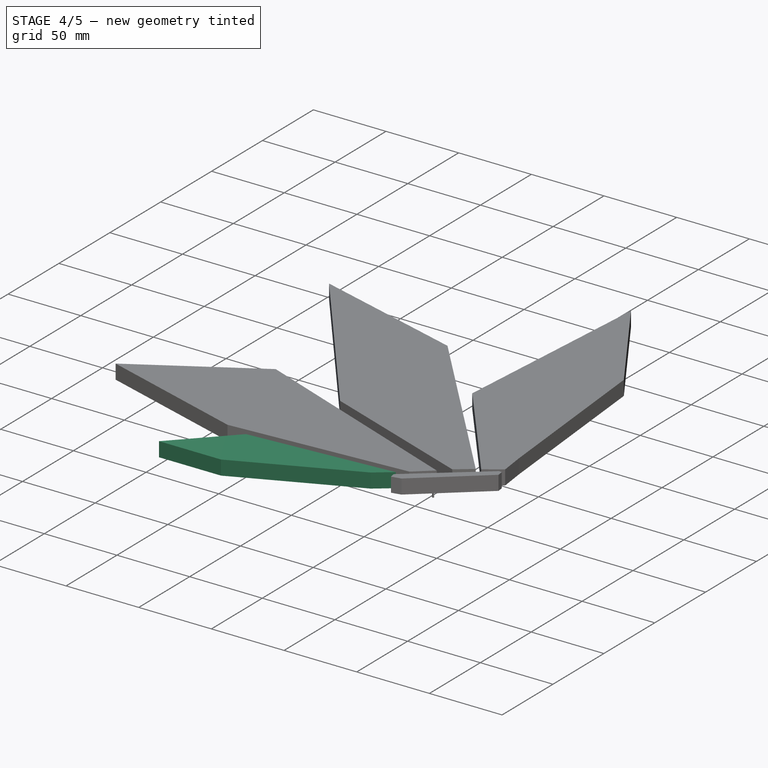
[diagram: stage 4 of 5 — iso view after this stage's code; geometry added in this stage tinted green]
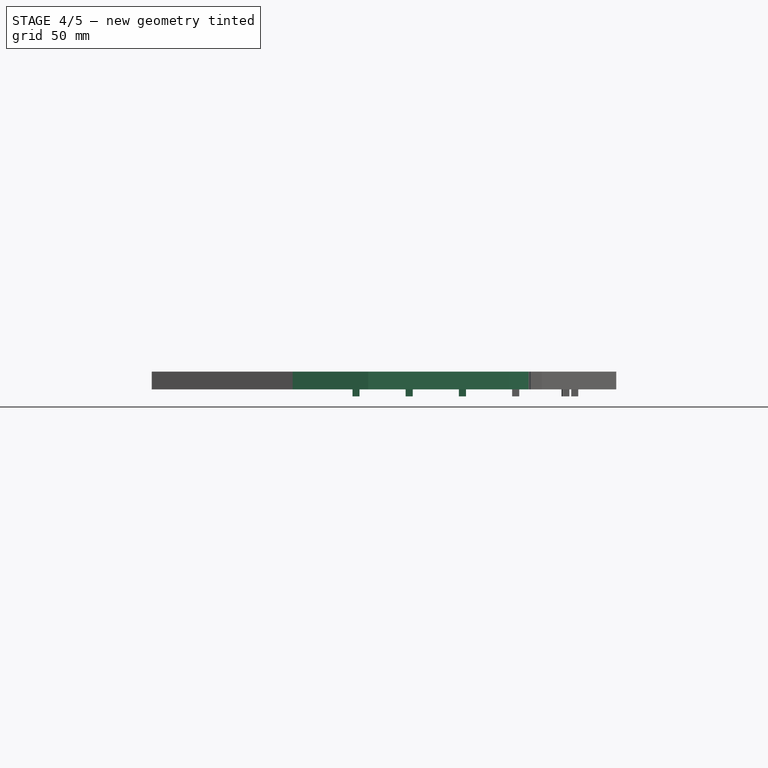
[diagram: stage 4 of 5 — front view after this stage's code; geometry added in this stage tinted green]
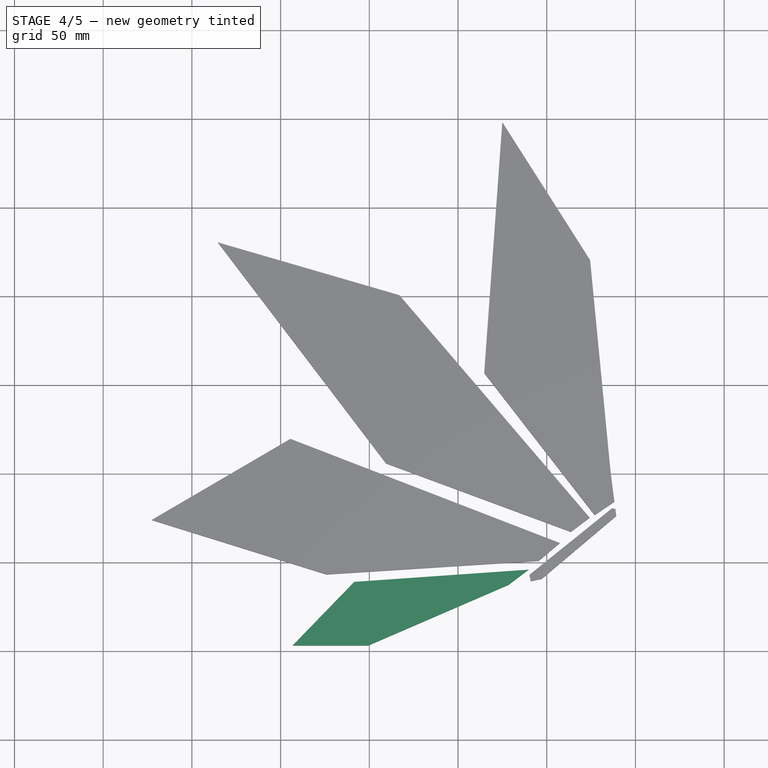
[diagram: stage 4 of 5 — top view after this stage's code; geometry added in this stage tinted green]
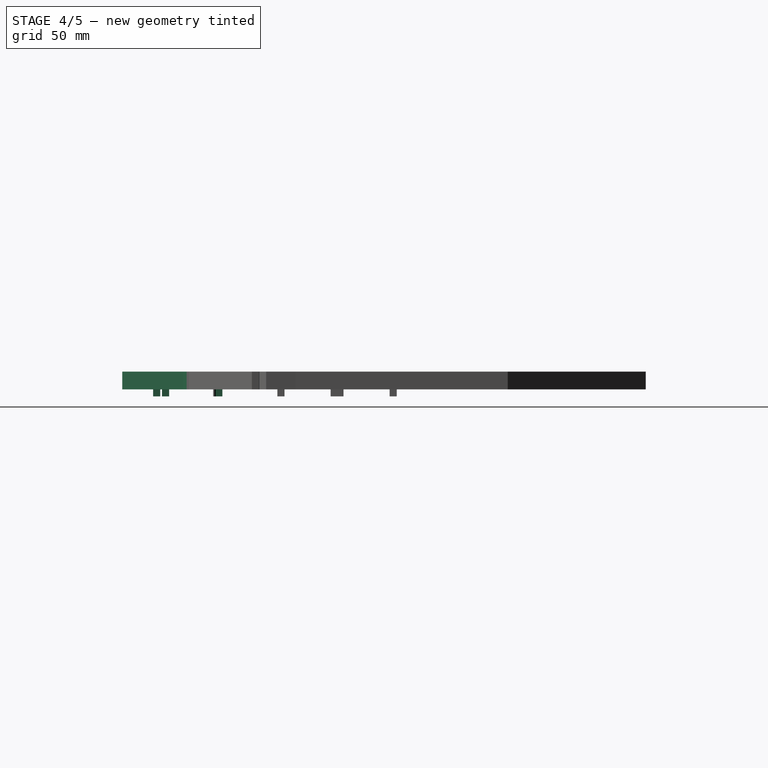
[diagram: stage 4 of 5 — right view after this stage's code; geometry added in this stage tinted green]
FEATURE [PartDesign::Body] Body  label="Back"
  Group = -> [Sketch,Pad,Sketch001,Pad001,Sketch004,Pocket001]
  Origin = -> Origin
  Tip = -> Pocket001
FEATURE [PartDesign::ShapeBinder] ShapeBinder001
  Support = -> [Pocket001]
  TraceSupport = false
FEATURE [Sketcher::SketchObject] Sketch005
  ExternalGeometry = -> [ShapeBinder001]
  FullyConstrained = true
  MapMode = 5
  Placement = pos=(0,0,10) rot=(0,0,1;0rad)
  Support = -> [ShapeBinder001]
  sketch-geometry (5):
    g0: LineSegment StartX=49.3891 StartY=3.10942 StartZ=0 EndX=128.45 EndY=37.3059 EndZ=0
    g1: LineSegment StartX=128.45 StartY=37.3059 StartZ=0 EndX=139.749 EndY=45.8414 EndZ=0
    g2: LineSegment StartX=139.749 StartY=45.8414 StartZ=0 EndX=41.5098 EndY=38.9547 EndZ=0
    g3: LineSegment StartX=41.5098 StartY=38.9547 StartZ=0 EndX=6.75908 EndY=3.10942 EndZ=0
    g4: LineSegment StartX=6.75908 StartY=3.10942 StartZ=0 EndX=49.3891 EndY=3.10942 EndZ=0
  constraints (13):
    c: Coincident(g0,g-4)
    c: Coincident(g0,g1)
    c: Coincident(g1,g-3)
    c: Coincident(g1,g2)
    c: Coincident(g2,g3)
    c: Coincident(g3,g4)
    c: Coincident(g4,g0)
    c: Horizontal(g4)
    c: PointOnObject(g-4,g0)
    c: Distance(g0) = 86.14
    c: DistanceX(g4,g4) = 42.63
    c: Distance(g2) = 98.48
    c: Angle(g2,g1) = 0.577006
FEATURE [PartDesign::Pad] Pad003
  Direction = (0,0,1)
  Length = 10
  Length2 = 10
  Profile = -> Sketch005
  ReferenceAxis = -> Sketch005 [N_Axis]
  Type = 0
FEATURE [Sketcher::SketchObject] Sketch006
  ExternalGeometry = -> [ShapeBinder001]
  FullyConstrained = true
  MapMode = 5
  Placement = pos=(0,0,10) rot=(1,0,0;3.14159rad)
  Support = -> [Pad003]
  sketch-geometry (14):
    g0: GeomPoint X=72.5 Y=-27.5 Z=0
    g1: GeomPoint X=42.5 Y=-22.5 Z=0
    g2: LineSegment StartX=74.5 StartY=-25.5 StartZ=0 EndX=74.5 EndY=-29.5 EndZ=0
    g3: LineSegment StartX=74.5 StartY=-29.5 StartZ=0 EndX=70.5 EndY=-29.5 EndZ=0
    g4: LineSegment StartX=70.5 StartY=-29.5 StartZ=0 EndX=70.5 EndY=-25.5 EndZ=0
    g5: LineSegment StartX=70.5 StartY=-25.5 StartZ=0 EndX=74.5 EndY=-25.5 EndZ=0
    g6: GeomPoint X=72.5 Y=-27.5 Z=0
    g7: LineSegment StartX=44.5 StartY=-20.5 StartZ=0 EndX=44.5 EndY=-24.5 EndZ=0
    g8: LineSegment StartX=44.5 StartY=-24.5 StartZ=0 EndX=40.5 EndY=-24.5 EndZ=0
    g9: LineSegment StartX=40.5 StartY=-24.5 StartZ=0 EndX=40.5 EndY=-20.5 EndZ=0
    g10: LineSegment StartX=40.5 StartY=-20.5 StartZ=0 EndX=44.5 EndY=-20.5 EndZ=0
    g11: GeomPoint X=42.5 Y=-22.5 Z=0
    g12: LineSegment StartX=74.5 StartY=-25.5 StartZ=0 EndX=74.5 EndY=-25 EndZ=0
    g13: LineSegment StartX=44.5 StartY=-20.5 StartZ=0 EndX=44.5 EndY=-20 EndZ=0
  constraints (32):
    c: Coincident(g2,g3)
    c: Coincident(g3,g4)
    c: Coincident(g4,g5)
    c: Coincident(g5,g2)
    c: Horizontal(g3)
    c: Horizontal(g5)
    c: Vertical(g2)
    c: Vertical(g4)
    c: Symmetric(g3,g2,g6)
    c: Coincident(g6,g0)
    c: Coincident(g7,g8)
    c: Coincident(g8,g9)
    c: Coincident(g9,g10)
    c: Coincident(g10,g7)
    c: Horizontal(g8)
    c: Horizontal(g10)
    c: Vertical(g7)
    c: Vertical(g9)
    c: Symmetric(g8,g7,g11)
    c: Coincident(g11,g1)
    c: Equal(g5,g4)
    c: Equal(g10,g9)
    c: Symmetric(g-4,g-5,g0)
    c: Coincident(g12,g2)
    c: PointOnObject(g12,g-4)
    c: Vertical(g12)
    c: DistanceY(g12,g12) = 0.5
    c: Symmetric(g-6,g-3,g1)
    c: Coincident(g13,g7)
    c: PointOnObject(g13,g-6)
    c: Vertical(g13)
    c: DistanceY(g13,g13) = 0.5
FEATURE [PartDesign::Pad] Pad004
  BaseFeature = -> Pad003
  Direction = (0,0,-1)
  Length = 4
  Length2 = 10
  Profile = -> Sketch006
  ReferenceAxis = -> Sketch006 [N_Axis]
  Type = 0
FEATURE [Sketcher::SketchObject] Sketch008
  ExternalGeometry = -> [ShapeBinder002]
  FullyConstrained = true
  MapMode = 5
  Placement = pos=(0,0,10) rot=(1,0,0;3.14159rad)
  Support = -> [Pad005]
  sketch-geometry (13):
    g0: GeomPoint X=72.5 Y=-57.5 Z=0
    g1: LineSegment StartX=74.5 StartY=-55.5 StartZ=0 EndX=74.5 EndY=-59.5 EndZ=0
    g2: LineSegment StartX=74.5 StartY=-59.5 StartZ=0 EndX=70.5 EndY=-59.5 EndZ=0
    g3: LineSegment StartX=70.5 StartY=-59.5 StartZ=0 EndX=70.5 EndY=-55.5 EndZ=0
    g4: LineSegment StartX=70.5 StartY=-55.5 StartZ=0 EndX=74.5 EndY=-55.5 EndZ=0
    g5: GeomPoint X=72.5 Y=-57.5 Z=0
    g6: LineSegment StartX=74.5 StartY=-55.5 StartZ=0 EndX=74.5 EndY=-55 EndZ=0
    g7: GeomPoint X=102.5 Y=-57.5 Z=0
    g8: LineSegment StartX=104.5 StartY=-55.5 StartZ=0 EndX=104.5 EndY=-59.5 EndZ=0
    g9: LineSegment StartX=104.5 StartY=-59.5 StartZ=0 EndX=100.5 EndY=-59.5 EndZ=0
    g10: LineSegment StartX=100.5 StartY=-59.5 StartZ=0 EndX=100.5 EndY=-55.5 EndZ=0
    g11: LineSegment StartX=100.5 StartY=-55.5 StartZ=0 EndX=104.5 EndY=-55.5 EndZ=0
    g12: GeomPoint X=102.5 Y=-57.5 Z=0
  constraints (29):
    c: Symmetric(g-5,g-6,g0)
    c: Coincident(g1,g2)
    c: Coincident(g2,g3)
    c: Coincident(g3,g4)
    c: Coincident(g4,g1)
    c: Horizontal(g2)
    c: Horizontal(g4)
    c: Vertical(g1)
    c: Vertical(g3)
    c: Symmetric(g2,g1,g5)
    c: Coincident(g5,g0)
    c: Equal(g1,g4)
    c: Coincident(g6,g1)
    c: PointOnObject(g6,g-5)
    c: Vertical(g6)
    c: DistanceY(g6,g6) = 0.5
    c: Symmetric(g-7,g-4,g7)
    c: Coincident(g8,g9)
    c: Coincident(g9,g10)
    c: Coincident(g10,g11)
    c: Coincident(g11,g8)
    c: Horizontal(g9)
    c: Horizontal(g11)
    c: Vertical(g8)
    c: Vertical(g10)
    c: Symmetric(g9,g8,g12)
    c: Coincident(g12,g7)
    c: Equal(g10,g9)
    c: Equal(g10,g1)
FEATURE [PartDesign::Pad] Pad006
  BaseFeature = -> Pad005
  Direction = (0,0,-1)
  Length = 4
  Length2 = 10
  Profile = -> Sketch008
  ReferenceAxis = -> Sketch008 [N_Axis]
  Type = 0
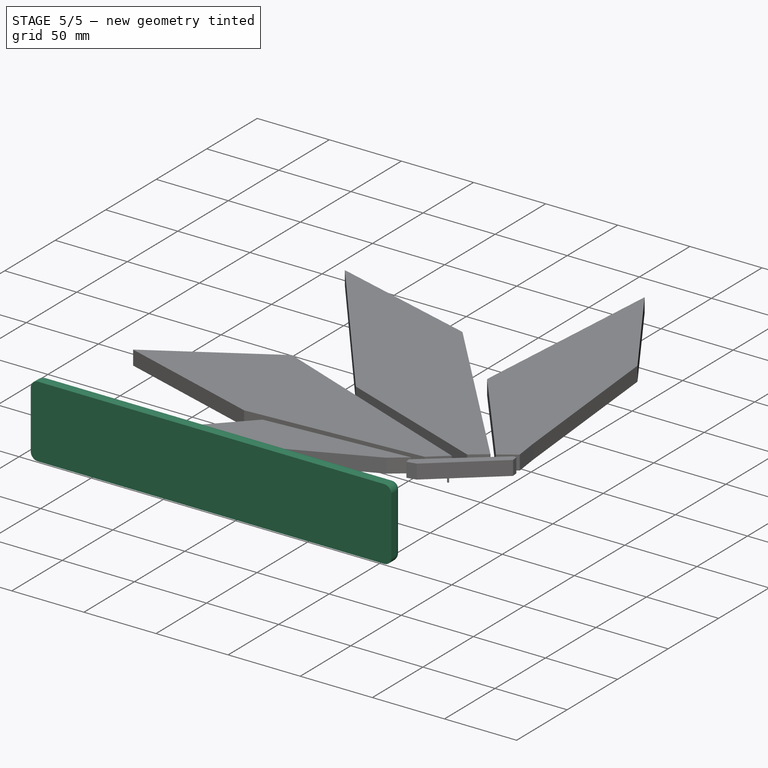
[diagram: stage 5 of 5 — iso view after this stage's code; geometry added in this stage tinted green]
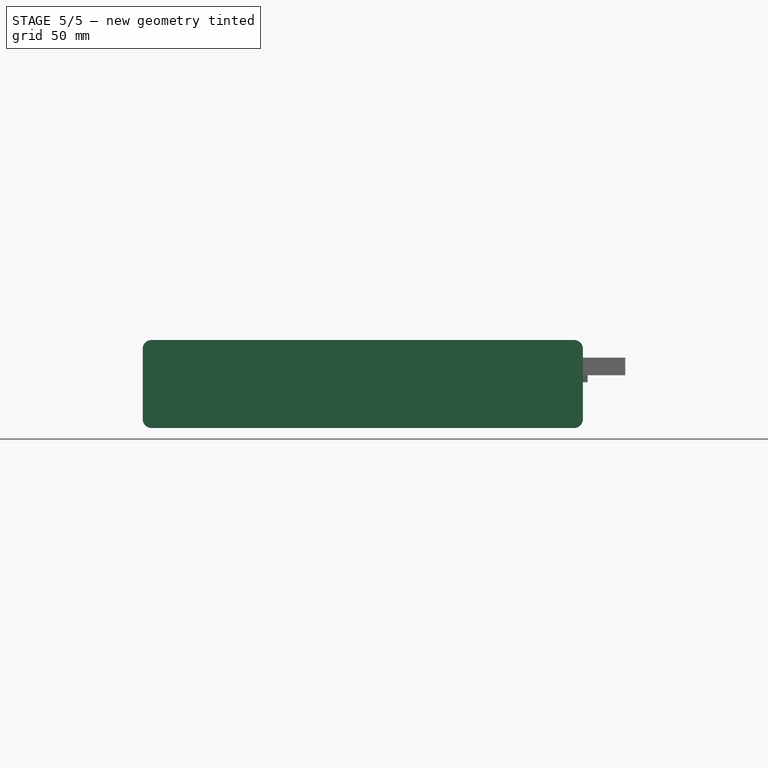
[diagram: stage 5 of 5 — front view after this stage's code; geometry added in this stage tinted green]
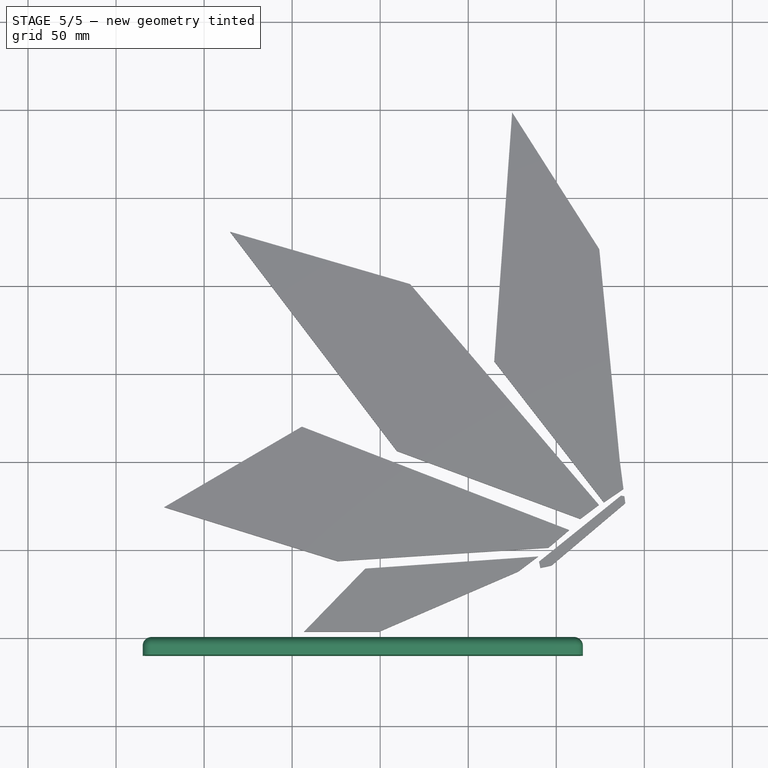
[diagram: stage 5 of 5 — top view after this stage's code; geometry added in this stage tinted green]
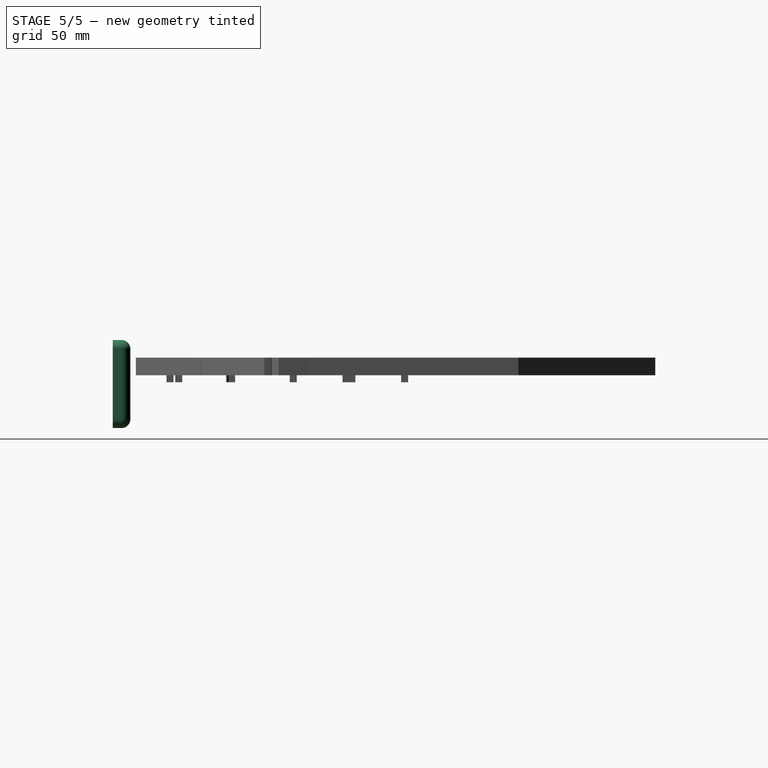
[diagram: stage 5 of 5 — right view after this stage's code; geometry added in this stage tinted green]
FEATURE [PartDesign::ShapeBinder] ShapeBinder
  Support = -> [Pad001]
  TraceSupport = false
FEATURE [Sketcher::SketchObject] Sketch002
  ExternalGeometry = -> [ShapeBinder]
  FullyConstrained = true
  MapMode = 5
  Placement = pos=(0,0,0) rot=(1,0,0;1.5708rad)
  Support = -> [ShapeBinder]
  sketch-geometry (6):
    g0: GeomPoint X=40.125 Y=5 Z=0
    g1: LineSegment StartX=-84.875 StartY=-20 StartZ=0 EndX=-84.875 EndY=30 EndZ=0
    g2: LineSegment StartX=-84.875 StartY=30 StartZ=0 EndX=165.125 EndY=30 EndZ=0
    g3: LineSegment StartX=165.125 StartY=30 StartZ=0 EndX=165.125 EndY=-20 EndZ=0
    g4: LineSegment StartX=165.125 StartY=-20 StartZ=0 EndX=-84.875 EndY=-20 EndZ=0
    g5: GeomPoint X=40.125 Y=5 Z=0
  constraints (13):
    c: Symmetric(g-3,g-4,g0)
    c: Coincident(g1,g2)
    c: Coincident(g2,g3)
    c: Coincident(g3,g4)
    c: Coincident(g4,g1)
    c: Horizontal(g2)
    c: Horizontal(g4)
    c: Vertical(g1)
    c: Vertical(g3)
    c: Symmetric(g2,g1,g5)
    c: Coincident(g5,g0)
    c: DistanceX(g4,g4) = 250
    c: DistanceY(g3,g3) = 50
FEATURE [PartDesign::Pad] Pad002
  Direction = (0,-1,2e-16)
  Length = 10
  Length2 = 10
  Profile = -> Sketch002
  ReferenceAxis = -> Sketch002 [N_Axis]
  Type = 0
FEATURE [Sketcher::SketchObject] Sketch003
  ExternalGeometry = -> [ShapeBinder]
  FullyConstrained = true
  MapMode = 5
  Placement = pos=(0,0,0) rot=(0,0.707107,0.707107;3.14159rad)
  Support = -> [Pad002]
  sketch-geometry (21):
    g0: LineSegment StartX=-80.25 StartY=10 StartZ=0 EndX=-80.25 EndY=0 EndZ=0
    g1: LineSegment StartX=-80.25 StartY=0 StartZ=0 EndX=-70.25 EndY=0 EndZ=0
    g2: LineSegment StartX=-70.25 StartY=0 StartZ=0 EndX=-70.25 EndY=10 EndZ=0
    g3: LineSegment StartX=-70.25 StartY=10 StartZ=0 EndX=-80.25 EndY=10 EndZ=0
    g4: GeomPoint X=-75.25 Y=5 Z=0
    g5: LineSegment StartX=-10 StartY=0 StartZ=0 EndX=-10 EndY=10 EndZ=0
    g6: LineSegment StartX=-10 StartY=10 StartZ=0 EndX=0 EndY=10 EndZ=0
    g7: LineSegment StartX=9e-16 StartY=10 StartZ=0 EndX=9e-16 EndY=0 EndZ=0
    g8: LineSegment StartX=9e-16 StartY=0 StartZ=0 EndX=-10 EndY=0 EndZ=0
    g9: GeomPoint X=-5 Y=5 Z=0
    g10: LineSegment StartX=-80.75 StartY=-0.5 StartZ=0 EndX=-80.75 EndY=10.5 EndZ=0
    g11: LineSegment StartX=-80.75 StartY=10.5 StartZ=0 EndX=-69.75 EndY=10.5 EndZ=0
    g12: LineSegment StartX=-69.75 StartY=10.5 StartZ=0 EndX=-69.75 EndY=-0.5 EndZ=0
    g13: LineSegment StartX=-69.75 StartY=-0.5 StartZ=0 EndX=-80.75 EndY=-0.5 EndZ=0
    g14: GeomPoint X=-75.25 Y=5 Z=0
    g15: LineSegment StartX=-10.5 StartY=-0.5 StartZ=0 EndX=-10.5 EndY=10.5 EndZ=0
    g16: LineSegment StartX=-10.5 StartY=10.5 StartZ=0 EndX=0.5 EndY=10.5 EndZ=0
    g17: LineSegment StartX=0.5 StartY=10.5 StartZ=0 EndX=0.5 EndY=-0.5 EndZ=0
    g18: LineSegment StartX=0.5 StartY=-0.5 StartZ=0 EndX=-10.5 EndY=-0.5 EndZ=0
    g19: GeomPoint X=-5 Y=5 Z=0
    g20: LineSegment StartX=-80.25 StartY=10 StartZ=0 EndX=-80.25 EndY=10.5 EndZ=0
  constraints (49):
    c: Coincident(g0,g1)
    c: Coincident(g1,g2)
    c: Coincident(g2,g3)
    c: Coincident(g3,g0)
    c: Horizontal(g1)
    c: Horizontal(g3)
    c: Vertical(g0)
    c: Symmetric(g1,g0,g4)
    c: Coincident(g1,g-3)
    c: Coincident(g-3,g2)
    c: Equal(g1,g2)
    c: Coincident(g5,g6)
    c: Coincident(g6,g7)
    c: Coincident(g7,g8)
    c: Coincident(g8,g5)
    c: Horizontal(g6)
    c: Horizontal(g8)
    c: Vertical(g7)
    c: Symmetric(g6,g5,g9)
    c: Coincident(g5,g-4)
    c: Equal(g5,g8)
    c: Coincident(g-4,g5)
    c: Coincident(g10,g11)
    c: Coincident(g11,g12)
    c: Coincident(g12,g13)
    c: Coincident(g13,g10)
    c: Horizontal(g11)
    c: Horizontal(g13)
    c: Vertical(g10)
    c: Vertical(g12)
    c: Symmetric(g11,g10,g14)
    c: Coincident(g14,g4)
    c: Coincident(g15,g16)
    c: Coincident(g16,g17)
    c: Coincident(g17,g18)
    c: Coincident(g18,g15)
    c: Horizontal(g16)
    c: Horizontal(g18)
    c: Vertical(g15)
    c: Vertical(g17)
    c: Symmetric(g16,g15,g19)
    c: Coincident(g19,g9)
    c: Equal(g13,g12)
    c: Equal(g18,g17)
    c: Horizontal(g12,g15)
    c: Coincident(g20,g0)
    c: Vertical(g20)
    c: PointOnObject(g20,g11)
    c: DistanceY(g20,g20) = 0.5
FEATURE [PartDesign::Pocket] Pocket
  BaseFeature = -> Pad002
  Direction = (0,-1,2e-16)
  Length = 5
  Length2 = 5
  Profile = -> Sketch003
  ReferenceAxis = -> Sketch003 [N_Axis]
  Type = 0
FEATURE [PartDesign::Fillet] Fillet
  Base = -> Pocket [Edge2,Edge9,Edge3,Edge6,Edge11,Edge8,Edge5,Edge1]
  BaseFeature = -> Pocket
  Radius = 5
  SupportTransform = false
  UseAllEdges = false
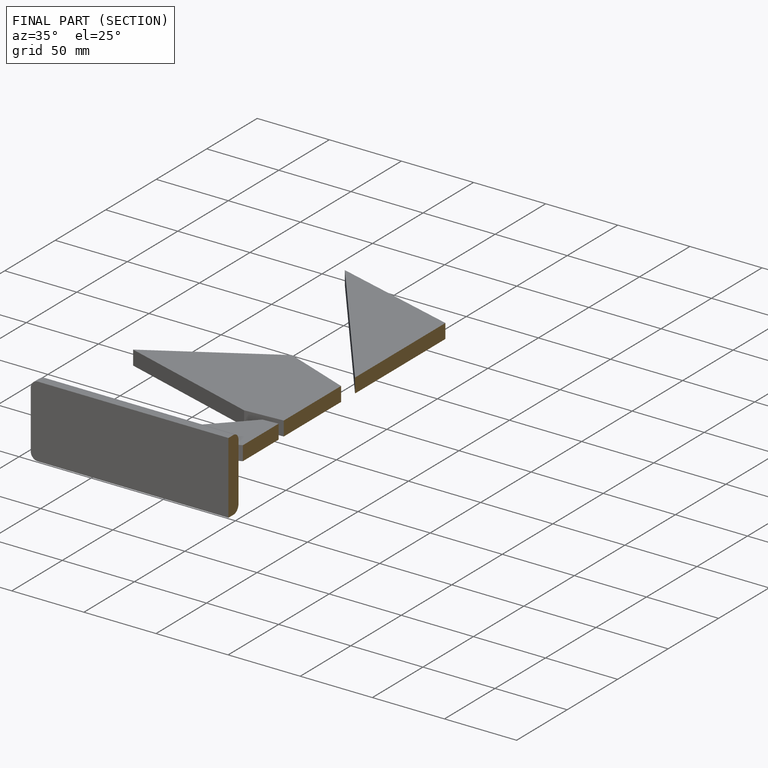
[diagram: finished part — half-section view (interior)]
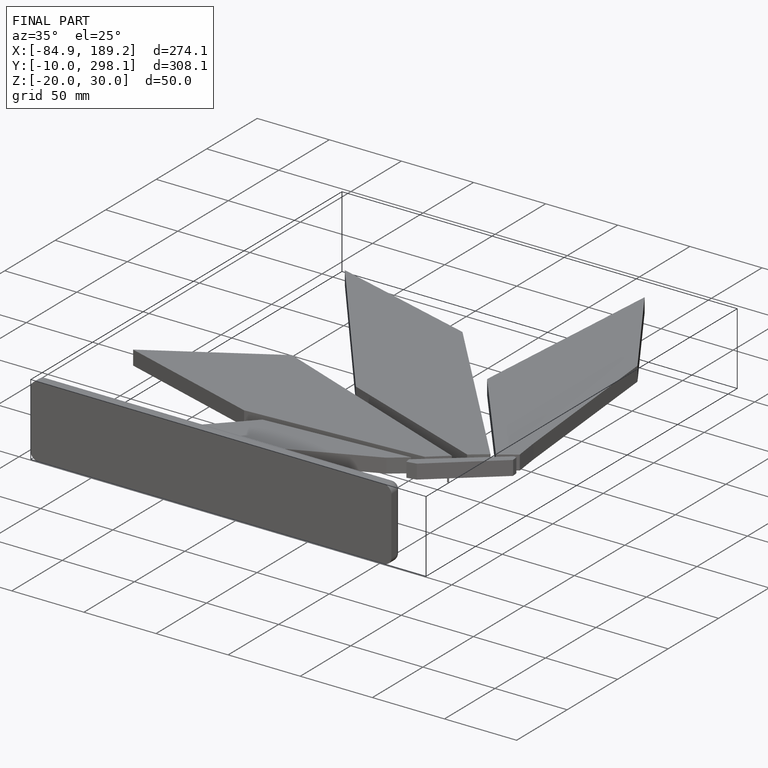
[diagram: finished part — iso view with bounding-box wireframe]
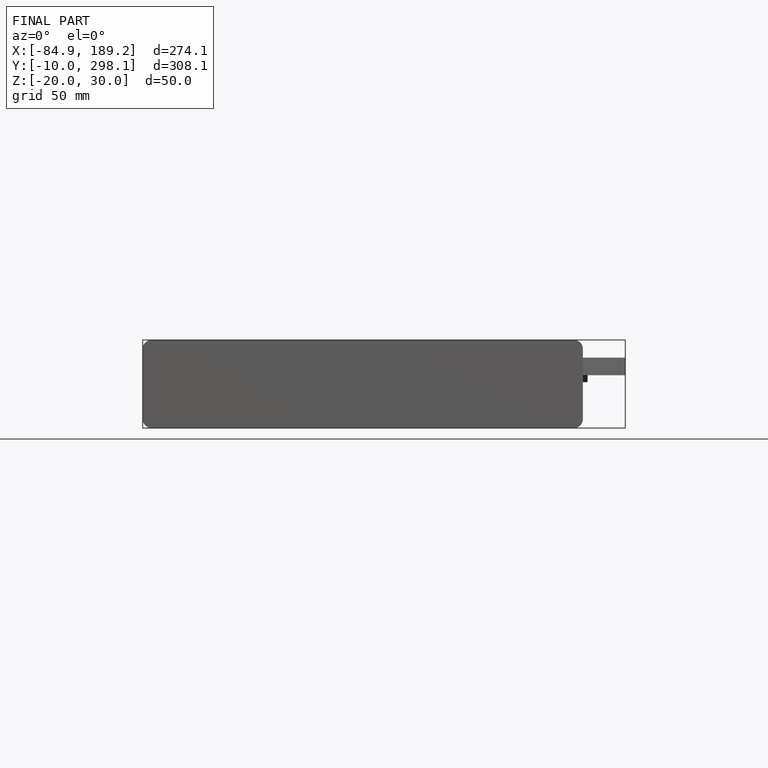
[diagram: finished part — front view with bounding-box wireframe]
